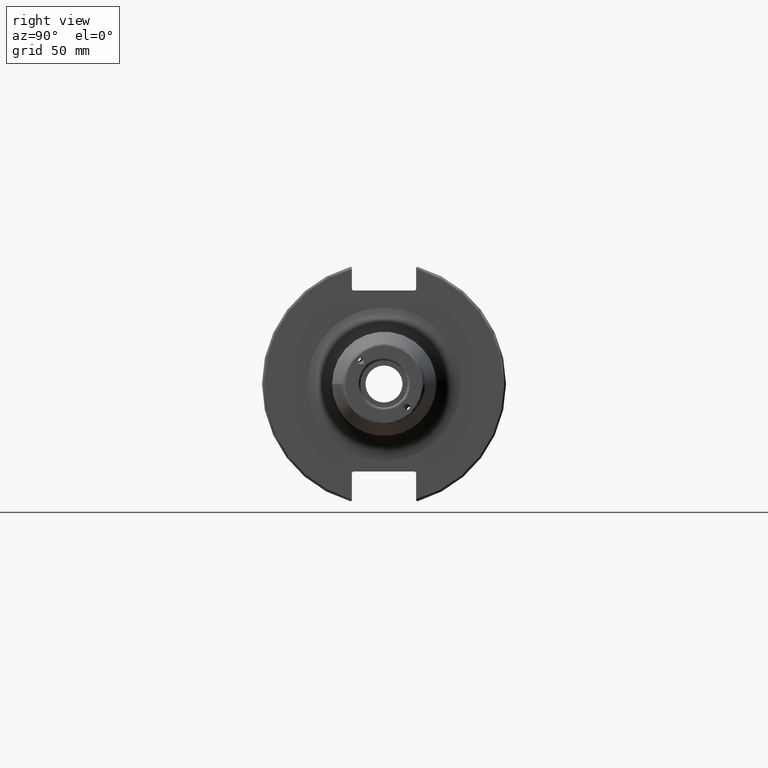
[diagram: clean part render]
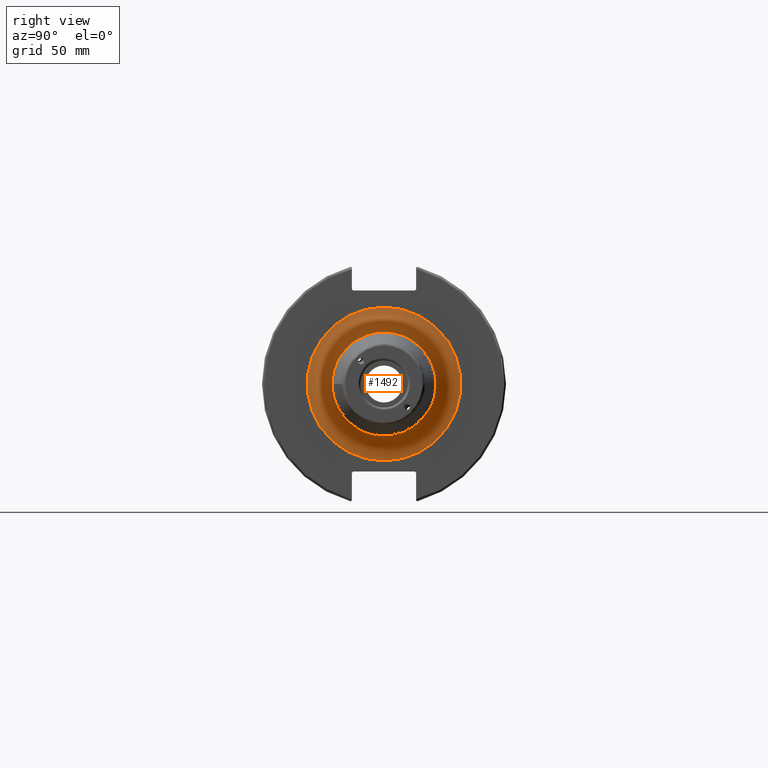
[diagram: same view with one face highlighted and labeled with its STEP entity id]
A machine part, right view. The second image highlights one B-rep face of the part: STEP entity #1492.
In plain terms, the highlighted toroidal blend (fillet) surface has major radius 31 mm and minor (blend) radius 10 mm.
Its self-contained STEP definition (entity closure, byte-faithful):
#130=TOROIDAL_SURFACE('',#1617,31.,10.);
#178=FACE_OUTER_BOUND('',#269,.T.);
#269=EDGE_LOOP('',(#1051,#1052,#1053,#1054,#1055));
#567=CIRCLE('',#1618,21.);
#568=CIRCLE('',#1619,10.);
#569=CIRCLE('',#1620,31.);
#570=CIRCLE('',#1621,21.);
#645=VERTEX_POINT('',#2239);
#646=VERTEX_POINT('',#2240);
#647=VERTEX_POINT('',#2242);
#805=EDGE_CURVE('',#645,#646,#567,.T.);
#806=EDGE_CURVE('',#646,#647,#568,.T.);
#807=EDGE_CURVE('',#647,#647,#569,.T.);
#808=EDGE_CURVE('',#646,#645,#570,.T.);
#1051=ORIENTED_EDGE('',*,*,#805,.T.);
#1052=ORIENTED_EDGE('',*,*,#806,.T.);
#1053=ORIENTED_EDGE('',*,*,#807,.T.);
#1054=ORIENTED_EDGE('',*,*,#806,.F.);
#1055=ORIENTED_EDGE('',*,*,#808,.T.);
#1492=ADVANCED_FACE('',(#178),#130,.F.);
#1617=AXIS2_PLACEMENT_3D('',#2238,#1816,#1817);
#1618=AXIS2_PLACEMENT_3D('',#2241,#1818,#1819);
#1619=AXIS2_PLACEMENT_3D('',#2243,#1820,#1821);
#1620=AXIS2_PLACEMENT_3D('',#2244,#1822,#1823);
#1621=AXIS2_PLACEMENT_3D('',#2245,#1824,#1825);
#1816=DIRECTION('center_axis',(-1.,0.,0.));
#1817=DIRECTION('ref_axis',(0.,0.,1.));
#1818=DIRECTION('center_axis',(-1.,0.,0.));
#1819=DIRECTION('ref_axis',(0.,-1.,-1.22464679914735E-16));
#1820=DIRECTION('center_axis',(0.,-1.,1.22464679914735E-16));
#1821=DIRECTION('ref_axis',(0.,-1.22464679914735E-16,-1.));
#1822=DIRECTION('center_axis',(1.,0.,0.));
#1823=DIRECTION('ref_axis',(0.,-1.,-1.22464679914735E-16));
#1824=DIRECTION('center_axis',(-1.,0.,0.));
#1825=DIRECTION('ref_axis',(0.,-1.,-1.22464679914735E-16));
#2238=CARTESIAN_POINT('Origin',(29.05,0.,0.));
#2239=CARTESIAN_POINT('',(29.05,-21.,-2.57175827820944E-15));
#2240=CARTESIAN_POINT('',(29.05,-2.57175827820944E-15,-21.));
#2241=CARTESIAN_POINT('Origin',(29.05,0.,0.));
#2242=CARTESIAN_POINT('',(19.05,-3.7964050773568E-15,-31.));
#2243=CARTESIAN_POINT('Origin',(29.05,-3.7964050773568E-15,-31.));
#2244=CARTESIAN_POINT('Origin',(19.05,0.,0.));
#2245=CARTESIAN_POINT('Origin',(29.05,0.,0.));